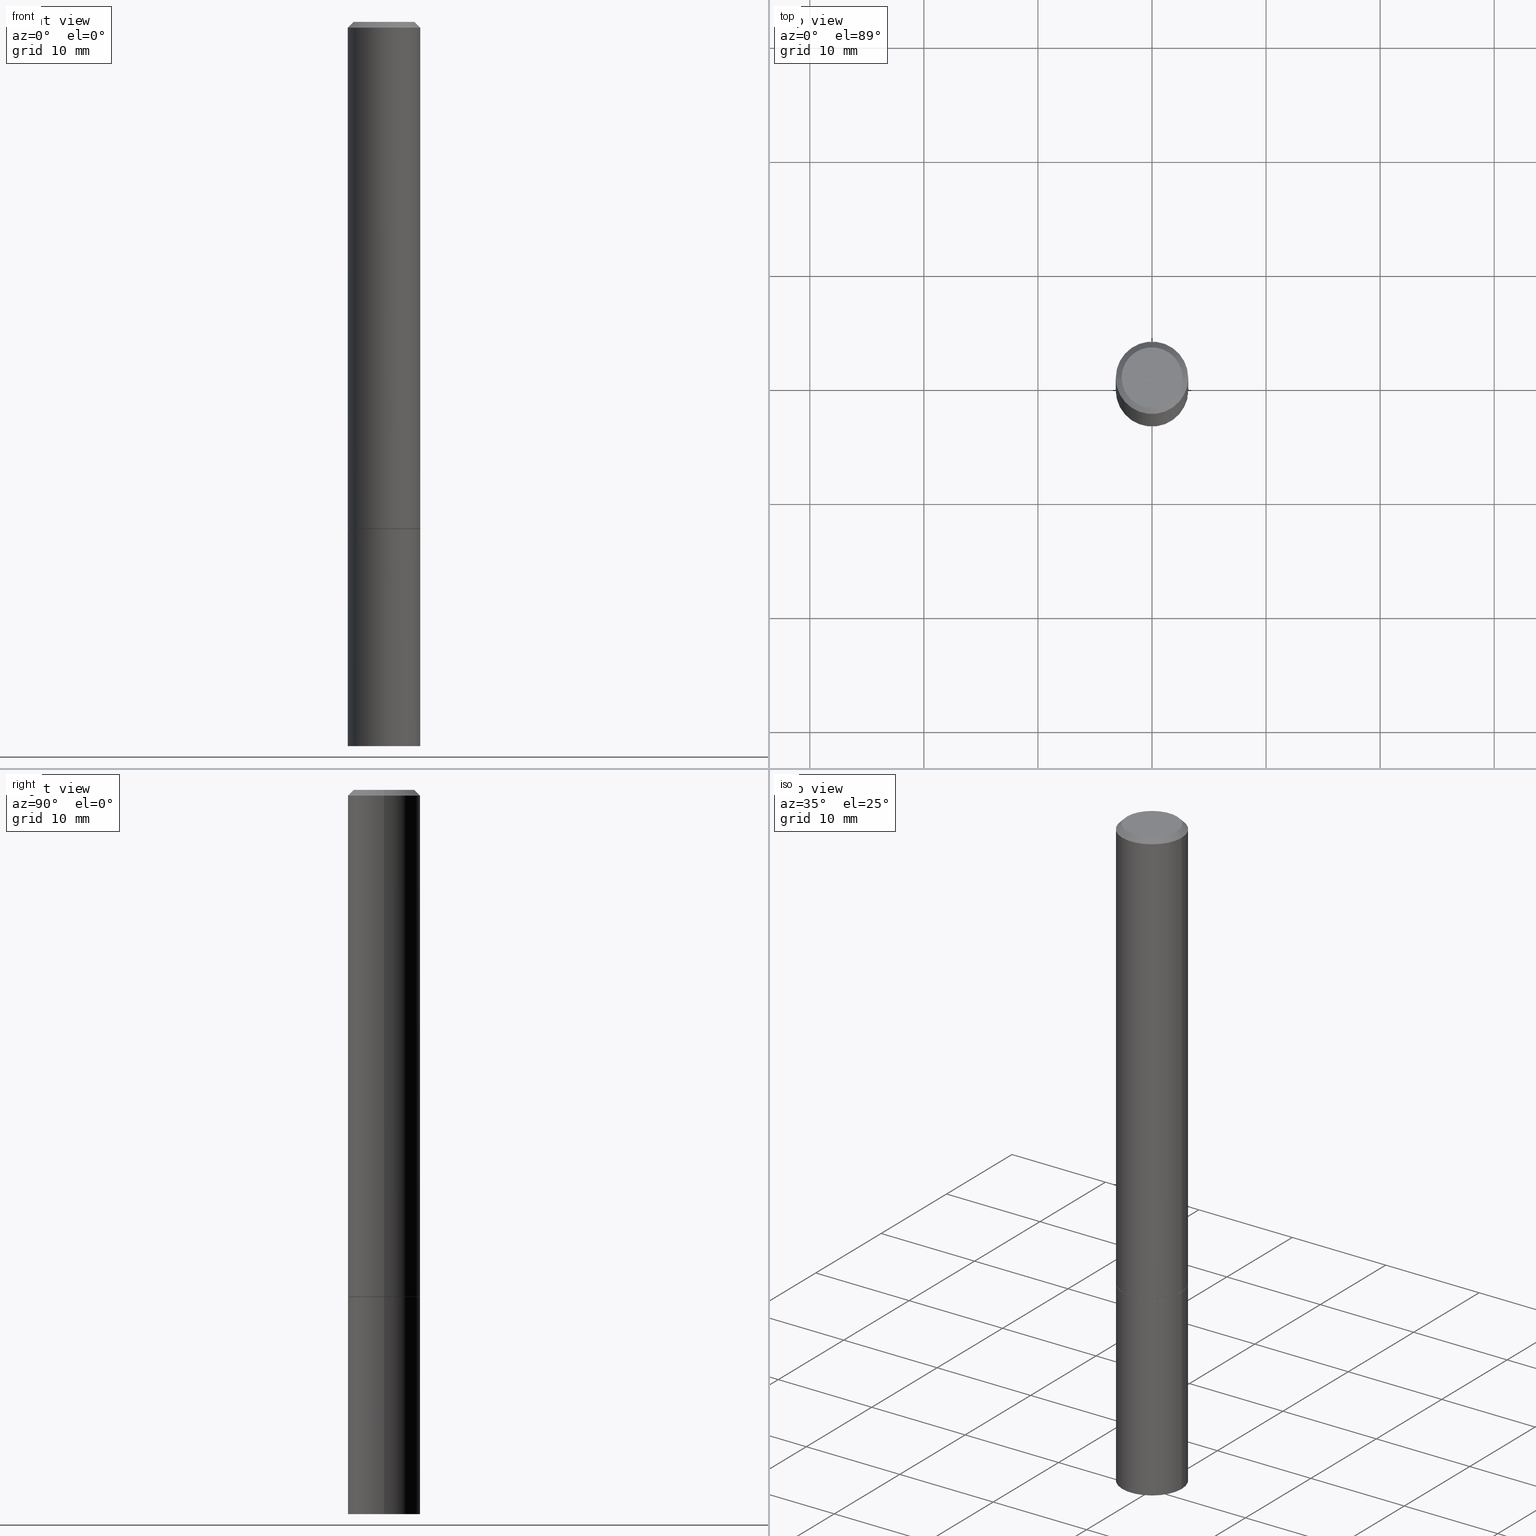
[diagram: canonical four-view strip — front | top / right | iso, engineering-drawing reading convention]
A machine part, canonical four-view strip (front | top / right | iso — engineering-drawing reading convention). The complete STEP part file that produces these views, byte-faithful:
ISO-10303-21;
HEADER;
FILE_DESCRIPTION (( 'STEP AP203' ),
    '1' );
FILE_NAME ('37423.STEP',
    '2024-02-27T21:36:52',
    ( '' ),
    ( '' ),
    'SwSTEP 2.0',
    'SolidWorks 2023',
    '' );
FILE_SCHEMA (( 'CONFIG_CONTROL_DESIGN' ));
ENDSEC;

DATA;
#1 = EDGE_CURVE ( 'NONE', #349, #218, #161, .T. ) ;
#2 = CARTESIAN_POINT ( 'NONE',  ( 4.890937612370281041E-31, -6.982962677686302702E-17, -0.02000000000000003511 ) ) ;
#3 = APPROVAL_STATUS ( 'not_yet_approved' ) ;
#4 = APPROVAL_PERSON_ORGANIZATION ( #276, #176, #242 ) ;
#5 = VERTEX_POINT ( 'NONE', #194 ) ;
#6 = PRODUCT_RELATED_PRODUCT_CATEGORY ( 'detail', '', ( #108 ) ) ;
#7 = LINE ( 'NONE', #36, #279 ) ;
#8 = DIRECTION ( 'NONE',  ( -2.445468806185136597E-29, 3.491481338843145583E-15, 1.000000000000000000 ) ) ;
#9 = VERTEX_POINT ( 'NONE', #284 ) ;
#10 = COORDINATED_UNIVERSAL_TIME_OFFSET ( 5, 0, .BEHIND. ) ;
#11 = AXIS2_PLACEMENT_3D ( 'NONE', #98, #213, #101 ) ;
#12 = LOCAL_TIME ( 16, 36, 52.00000000000000000, #225 ) ;
#13 = ORIENTED_EDGE ( 'NONE', *, *, #251, .F. ) ;
#14 = VERTEX_POINT ( 'NONE', #366 ) ;
#15 = ORIENTED_EDGE ( 'NONE', *, *, #27, .F. ) ;
#16 = ADVANCED_FACE ( 'NONE', ( #139 ), #261, .T. ) ;
#17 = AXIS2_PLACEMENT_3D ( 'NONE', #210, #41, #212 ) ;
#18 = DIRECTION ( 'NONE',  ( -2.438088387897960049E-29, 3.491481338843145188E-15, 1.000000000000000000 ) ) ;
#19 = EDGE_LOOP ( 'NONE', ( #185, #293, #324, #127 ) ) ;
#20 = PERSON_AND_ORGANIZATION ( #309, #271 ) ;
#21 = DIRECTION ( 'NONE',  ( 1.000000000000000000, -6.982962677686262766E-15, 0.000000000000000000 ) ) ;
#22 = CARTESIAN_POINT ( 'NONE',  ( 4.279570410823988484E-29, -6.110092342975504671E-15, -1.750000000000000000 ) ) ;
#23 = CARTESIAN_POINT ( 'NONE',  ( 0.1239999999999999991, -6.975979715008601207E-15, -1.750000000000000000 ) ) ;
#24 = CC_DESIGN_PERSON_AND_ORGANIZATION_ASSIGNMENT ( #78, #193, ( #108 ) ) ;
#25 = AXIS2_PLACEMENT_3D ( 'NONE', #240, #175, #236 ) ;
#26 = FACE_OUTER_BOUND ( 'NONE', #152, .T. ) ;
#27 = EDGE_CURVE ( 'NONE', #218, #349, #357, .T. ) ;
#28 = CC_DESIGN_PERSON_AND_ORGANIZATION_ASSIGNMENT ( #272, #327, ( #205 ) ) ;
#29 =( NAMED_UNIT ( * ) PLANE_ANGLE_UNIT ( ) SI_UNIT ( $, .RADIAN. ) );
#30 = ADVANCED_FACE ( 'NONE', ( #26 ), #258, .T. ) ;
#31 =( CONVERSION_BASED_UNIT ( 'INCH', #42 ) LENGTH_UNIT ( ) NAMED_UNIT ( #100 ) );
#32 = AXIS2_PLACEMENT_3D ( 'NONE', #361, #280, #342 ) ;
#33 = ORIENTED_EDGE ( 'NONE', *, *, #348, .F. ) ;
#34 = DIRECTION ( 'NONE',  ( -1.000000000000000000, 6.982962677686265922E-15, -4.876176775795935793E-29 ) ) ;
#35 = DIRECTION ( 'NONE',  ( -1.000000000000000000, 6.982962677686266711E-15, 0.000000000000000000 ) ) ;
#36 = CARTESIAN_POINT ( 'NONE',  ( -0.1249999999999999029, 8.881784197001245421E-16, -6.148668862818627323E-30 ) ) ;
#37 = EDGE_LOOP ( 'NONE', ( #231, #88, #209, #243 ) ) ;
#38 = DIRECTION ( 'NONE',  ( 1.000000000000000000, -6.982962677686266711E-15, 0.000000000000000000 ) ) ;
#39 = EDGE_CURVE ( 'NONE', #298, #248, #321, .T. ) ;
#40 = EDGE_LOOP ( 'NONE', ( #265, #270, #120, #273 ) ) ;
#41 = DIRECTION ( 'NONE',  ( -2.445468806185136597E-29, 3.491481338843145583E-15, 1.000000000000000000 ) ) ;
#42 = LENGTH_MEASURE_WITH_UNIT ( LENGTH_MEASURE( 0.02539999999999999897 ), #142 );
#43 = ORIENTED_EDGE ( 'NONE', *, *, #39, .T. ) ;
#44 = ADVANCED_FACE ( 'NONE', ( #86 ), #340, .T. ) ;
#45 = ORIENTED_EDGE ( 'NONE', *, *, #335, .F. ) ;
#46 = DIRECTION ( 'NONE',  ( -2.445468806185136597E-29, 3.491481338843145583E-15, 1.000000000000000000 ) ) ;
#47 = LOCAL_TIME ( 16, 36, 52.00000000000000000, #10 ) ;
#48 = EDGE_LOOP ( 'NONE', ( #162, #124, #33, #360 ) ) ;
#49 = FACE_OUTER_BOUND ( 'NONE', #239, .T. ) ;
#50 = APPROVAL_STATUS ( 'not_yet_approved' ) ;
#51 = ADVANCED_FACE ( 'NONE', ( #297 ), #288, .T. ) ;
#52 = CARTESIAN_POINT ( 'NONE',  ( 0.1249999999999997918, -9.273918764983031658E-16, -0.02000000000000003511 ) ) ;
#53 = ADVANCED_BREP_SHAPE_REPRESENTATION ( '37423', ( #305, #70, #331 ), #351 ) ;
#54 = DIRECTION ( 'NONE',  ( 1.000000000000000000, -6.982962677686262766E-15, 0.000000000000000000 ) ) ;
#55 = APPROVAL_PERSON_ORGANIZATION ( #150, #245, #264 ) ;
#56 = LINE ( 'NONE', #134, #123 ) ;
#57 = DIRECTION ( 'NONE',  ( -2.445468806185136597E-29, 3.491481338843145583E-15, 1.000000000000000000 ) ) ;
#58 = DIRECTION ( 'NONE',  ( -2.445468806185136597E-29, 3.491481338843145583E-15, 1.000000000000000000 ) ) ;
#59 = VECTOR ( 'NONE', #125, 39.37007874015748143 ) ;
#60 = LOCAL_TIME ( 16, 36, 52.00000000000000000, #63 ) ;
#61 = DATE_AND_TIME ( #181, #47 ) ;
#62 = ORIENTED_EDGE ( 'NONE', *, *, #39, .F. ) ;
#63 = COORDINATED_UNIVERSAL_TIME_OFFSET ( 5, 0, .BEHIND. ) ;
#64 = CARTESIAN_POINT ( 'NONE',  ( 4.890937612370281041E-31, -6.982962677686302702E-17, -0.02000000000000003511 ) ) ;
#65 = EDGE_LOOP ( 'NONE', ( #302, #43 ) ) ;
#66 = ORIENTED_EDGE ( 'NONE', *, *, #27, .T. ) ;
#67 = CARTESIAN_POINT ( 'NONE',  ( 4.279570410823989044E-29, -6.110092342975505460E-15, -1.750000000000000222 ) ) ;
#68 = CIRCLE ( 'NONE', #241, 0.1250000000000000000 ) ;
#69 = VERTEX_POINT ( 'NONE', #350 ) ;
#70 = MANIFOLD_SOLID_BREP ( 'Body-Move/Copy2[2]', #171 ) ;
#71 = CARTESIAN_POINT ( 'NONE',  ( 4.279570410823988484E-29, -6.110092342975504671E-15, -1.750000000000000000 ) ) ;
#72 = EDGE_CURVE ( 'NONE', #69, #93, #330, .T. ) ;
#73 = ORIENTED_EDGE ( 'NONE', *, *, #353, .F. ) ;
#74 = CALENDAR_DATE ( 2024, 27, 2 ) ;
#75 = MECHANICAL_CONTEXT ( 'NONE', #322, 'mechanical' ) ;
#76 = CIRCLE ( 'NONE', #358, 0.1250000000000000000 ) ;
#77 = EDGE_CURVE ( 'NONE', #93, #69, #199, .T. ) ;
#78 = PERSON_AND_ORGANIZATION ( #309, #271 ) ;
#79 = DIRECTION ( 'NONE',  ( 0.7071067811865467956, -7.319954787623254468E-15, -0.7071067811865482389 ) ) ;
#80 = PRODUCT_DEFINITION ( 'UNKNOWN', '', #205, #189 ) ;
#81 = DIRECTION ( 'NONE',  ( 1.000000000000000000, -6.982962677686266711E-15, 4.876176775795935793E-29 ) ) ;
#82 = EDGE_CURVE ( 'NONE', #346, #248, #267, .T. ) ;
#83 = LOCAL_TIME ( 16, 36, 52.00000000000000000, #356 ) ;
#84 = CARTESIAN_POINT ( 'NONE',  ( 4.279570410823989044E-29, -6.110092342975505460E-15, -1.750000000000000222 ) ) ;
#85 = PLANE ( 'NONE',  #32 ) ;
#86 = FACE_OUTER_BOUND ( 'NONE', #156, .T. ) ;
#87 = AXIS2_PLACEMENT_3D ( 'NONE', #22, #58, #252 ) ;
#88 = ORIENTED_EDGE ( 'NONE', *, *, #126, .T. ) ;
#89 = DIRECTION ( 'NONE',  ( 1.000000000000000000, -6.982962677686262766E-15, 0.000000000000000000 ) ) ;
#90 = AXIS2_PLACEMENT_3D ( 'NONE', #347, #147, #34 ) ;
#91 = CC_DESIGN_DATE_AND_TIME_ASSIGNMENT ( #345, #296, ( #80 ) ) ;
#92 = AXIS2_PLACEMENT_3D ( 'NONE', #167, #283, #278 ) ;
#93 = VERTEX_POINT ( 'NONE', #106 ) ;
#94 = DIRECTION ( 'NONE',  ( -2.445468806185136597E-29, 3.491481338843145583E-15, 1.000000000000000000 ) ) ;
#95 = CARTESIAN_POINT ( 'NONE',  ( 6.113672015462842613E-29, -8.728703347107864943E-15, -2.500000000000000000 ) ) ;
#96 =( NAMED_UNIT ( * ) SI_UNIT ( $, .STERADIAN. ) SOLID_ANGLE_UNIT ( ) );
#97 = AXIS2_PLACEMENT_3D ( 'NONE', #136, #312, #314 ) ;
#98 = CARTESIAN_POINT ( 'NONE',  ( 4.277124942017804562E-29, -6.106600861636661664E-15, -1.749000000000000110 ) ) ;
#99 = CC_DESIGN_PERSON_AND_ORGANIZATION_ASSIGNMENT ( #20, #186, ( #107 ) ) ;
#100 = DIMENSIONAL_EXPONENTS ( 1.000000000000000000, 0.000000000000000000, 0.000000000000000000, 0.000000000000000000, 0.000000000000000000, 0.000000000000000000, 0.000000000000000000 ) ;
#101 = DIRECTION ( 'NONE',  ( 1.000000000000000000, -6.982962677686270655E-15, 0.000000000000000000 ) ) ;
#102 = ORIENTED_EDGE ( 'NONE', *, *, #343, .T. ) ;
#103 = CALENDAR_DATE ( 2024, 27, 2 ) ;
#104 = ADVANCED_FACE ( 'NONE', ( #49 ), #191, .F. ) ;
#105 = AXIS2_PLACEMENT_3D ( 'NONE', #64, #294, #35 ) ;
#106 = CARTESIAN_POINT ( 'NONE',  ( -0.1250000000000000278, -2.200036824506634488E-15, -1.749000000000000110 ) ) ;
#107 = SECURITY_CLASSIFICATION ( '', '', #301 ) ;
#108 = PRODUCT ( '37423', '37423', '', ( #75 ) ) ;
#109 = ORIENTED_EDGE ( 'NONE', *, *, #126, .F. ) ;
#110 = PERSON_AND_ORGANIZATION_ROLE ( 'design_supplier' ) ;
#111 = CARTESIAN_POINT ( 'NONE',  ( -0.1249999999999997918, 8.030407079339188573E-16, -0.02000000000000003511 ) ) ;
#112 = PLANE ( 'NONE',  #204 ) ;
#113 = CYLINDRICAL_SURFACE ( 'NONE', #226, 0.1249999999999999029 ) ;
#114 = DIRECTION ( 'NONE',  ( 1.000000000000000000, -6.982962677686265922E-15, 4.876176775795935793E-29 ) ) ;
#115 = DIRECTION ( 'NONE',  ( 1.000000000000000000, -6.982962677686265922E-15, 4.876176775795935793E-29 ) ) ;
#116 = ADVANCED_FACE ( 'NONE', ( #130 ), #299, .T. ) ;
#117 = FACE_OUTER_BOUND ( 'NONE', #290, .T. ) ;
#118 = ORIENTED_EDGE ( 'NONE', *, *, #266, .F. ) ;
#119 = DIRECTION ( 'NONE',  ( 1.000000000000000000, -6.982962677686270655E-15, 0.000000000000000000 ) ) ;
#120 = ORIENTED_EDGE ( 'NONE', *, *, #348, .T. ) ;
#121 = ORIENTED_EDGE ( 'NONE', *, *, #343, .F. ) ;
#122 = AXIS2_PLACEMENT_3D ( 'NONE', #84, #364, #54 ) ;
#123 = VECTOR ( 'NONE', #363, 39.37007874015748143 ) ;
#124 = ORIENTED_EDGE ( 'NONE', *, *, #274, .T. ) ;
#125 = DIRECTION ( 'NONE',  ( -2.445468806185136877E-29, 3.491481338843145188E-15, 1.000000000000000000 ) ) ;
#126 = EDGE_CURVE ( 'NONE', #218, #93, #362, .T. ) ;
#127 = ORIENTED_EDGE ( 'NONE', *, *, #222, .F. ) ;
#128 = CC_DESIGN_SECURITY_CLASSIFICATION ( #107, ( #205 ) ) ;
#129 = ORIENTED_EDGE ( 'NONE', *, *, #82, .T. ) ;
#130 = FACE_OUTER_BOUND ( 'NONE', #319, .T. ) ;
#131 = CARTESIAN_POINT ( 'NONE',  ( 0.000000000000000000, 0.000000000000000000, 0.000000000000000000 ) ) ;
#132 = COORDINATED_UNIVERSAL_TIME_OFFSET ( 5, 0, .BEHIND. ) ;
#133 = DIRECTION ( 'NONE',  ( 1.000000000000000000, -6.982962677686265922E-15, 4.876176775795935793E-29 ) ) ;
#134 = CARTESIAN_POINT ( 'NONE',  ( 0.1239999999999999991, -6.975979715008601207E-15, -1.750000000000000000 ) ) ;
#135 = VECTOR ( 'NONE', #211, 39.37007874015748143 ) ;
#136 = CARTESIAN_POINT ( 'NONE',  ( 0.000000000000000000, 0.000000000000000000, 0.000000000000000000 ) ) ;
#137 = EDGE_CURVE ( 'NONE', #9, #206, #359, .T. ) ;
#138 = DIRECTION ( 'NONE',  ( -1.000000000000000000, 6.982962677686265922E-15, -4.876176775795935793E-29 ) ) ;
#139 = FACE_OUTER_BOUND ( 'NONE', #37, .T. ) ;
#140 = AXIS2_PLACEMENT_3D ( 'NONE', #202, #286, #115 ) ;
#141 = ADVANCED_FACE ( 'NONE', ( #163 ), #112, .T. ) ;
#142 =( LENGTH_UNIT ( ) NAMED_UNIT ( * ) SI_UNIT ( $, .METRE. ) );
#143 = AXIS2_PLACEMENT_3D ( 'NONE', #281, #57, #339 ) ;
#144 = APPROVAL_PERSON_ORGANIZATION ( #332, #338, #166 ) ;
#145 = PERSON_AND_ORGANIZATION ( #309, #271 ) ;
#146 = ORIENTED_EDGE ( 'NONE', *, *, #182, .F. ) ;
#147 = DIRECTION ( 'NONE',  ( 2.438088387897960049E-29, -3.491481338843145188E-15, -1.000000000000000000 ) ) ;
#148 = CC_DESIGN_DATE_AND_TIME_ASSIGNMENT ( #157, #249, ( #107 ) ) ;
#149 = CARTESIAN_POINT ( 'NONE',  ( 0.000000000000000000, 0.000000000000000000, 0.000000000000000000 ) ) ;
#150 = PERSON_AND_ORGANIZATION ( #309, #271 ) ;
#151 = DIRECTION ( 'NONE',  ( 1.000000000000000000, -6.982962677686266711E-15, 4.876176775795935793E-29 ) ) ;
#152 = EDGE_LOOP ( 'NONE', ( #118, #187, #129, #62 ) ) ;
#153 = AXIS2_PLACEMENT_3D ( 'NONE', #246, #18, #133 ) ;
#154 = PERSON_AND_ORGANIZATION_ROLE ( 'creator' ) ;
#155 = CARTESIAN_POINT ( 'NONE',  ( 0.1250000000000000000, -8.728703347107833388E-16, 6.095220969744919741E-30 ) ) ;
#156 = EDGE_LOOP ( 'NONE', ( #45, #121, #237, #354 ) ) ;
#157 = DATE_AND_TIME ( #74, #313 ) ;
#158 = ORIENTED_EDGE ( 'NONE', *, *, #82, .F. ) ;
#159 = DIRECTION ( 'NONE',  ( 2.438088387897960049E-29, -3.491481338843145188E-15, -1.000000000000000000 ) ) ;
#160 = CARTESIAN_POINT ( 'NONE',  ( -0.1239999999999999991, -5.229019350632980447E-15, -1.750000000000000000 ) ) ;
#161 = CIRCLE ( 'NONE', #143, 0.1239999999999999991 ) ;
#162 = ORIENTED_EDGE ( 'NONE', *, *, #72, .T. ) ;
#163 = FACE_OUTER_BOUND ( 'NONE', #179, .T. ) ;
#164 = CYLINDRICAL_SURFACE ( 'NONE', #97, 0.1250000000000000000 ) ;
#165 = ORIENTED_EDGE ( 'NONE', *, *, #266, .T. ) ;
#166 = APPROVAL_ROLE ( '' ) ;
#167 = CARTESIAN_POINT ( 'NONE',  ( 4.890937612370281041E-31, -6.982962677686302702E-17, -0.02000000000000003511 ) ) ;
#168 = VECTOR ( 'NONE', #333, 39.37007874015748143 ) ;
#169 = CARTESIAN_POINT ( 'NONE',  ( -0.1250000000000000000, -6.531219425341559180E-15, -1.750000000000000222 ) ) ;
#170 = CARTESIAN_POINT ( 'NONE',  ( 0.1250000000000000000, -9.601573681818648281E-15, -2.500000000000000000 ) ) ;
#171 = CLOSED_SHELL ( 'NONE', ( #16, #260, #172, #44, #51, #116, #104, #234 ) ) ;
#172 = ADVANCED_FACE ( 'NONE', ( #256 ), #304, .T. ) ;
#173 = DIRECTION ( 'NONE',  ( -2.445468806185136597E-29, 3.491481338843145583E-15, 1.000000000000000000 ) ) ;
#174 = CARTESIAN_POINT ( 'NONE',  ( -0.1250000000000000000, 8.881784197001252323E-16, -6.148668862818632227E-30 ) ) ;
#175 = DIRECTION ( 'NONE',  ( 2.445468806185136597E-29, -3.491481338843145583E-15, -1.000000000000000000 ) ) ;
#176 = APPROVAL ( #198, 'UNSPECIFIED' ) ;
#177 = CLOSED_SHELL ( 'NONE', ( #282, #141, #317, #30 ) ) ;
#178 = CIRCLE ( 'NONE', #244, 0.1049999999999998018 ) ;
#179 = EDGE_LOOP ( 'NONE', ( #146, #73 ) ) ;
#180 = PLANE ( 'NONE',  #90 ) ;
#181 = CALENDAR_DATE ( 2024, 27, 2 ) ;
#182 = EDGE_CURVE ( 'NONE', #346, #14, #76, .T. ) ;
#183 = VECTOR ( 'NONE', #79, 39.37007874015748143 ) ;
#184 = PERSON_AND_ORGANIZATION ( #309, #271 ) ;
#185 = ORIENTED_EDGE ( 'NONE', *, *, #274, .F. ) ;
#186 = PERSON_AND_ORGANIZATION_ROLE ( 'classification_officer' ) ;
#187 = ORIENTED_EDGE ( 'NONE', *, *, #353, .T. ) ;
#188 = DIRECTION ( 'NONE',  ( -2.445468806185136877E-29, 3.491481338843145188E-15, 1.000000000000000000 ) ) ;
#189 = DESIGN_CONTEXT ( 'detailed design', #254, 'design' ) ;
#190 = CC_DESIGN_PERSON_AND_ORGANIZATION_ASSIGNMENT ( #145, #154, ( #80 ) ) ;
#191 = PLANE ( 'NONE',  #153 ) ;
#192 = AXIS2_PLACEMENT_3D ( 'NONE', #67, #269, #89 ) ;
#193 = PERSON_AND_ORGANIZATION_ROLE ( 'design_owner' ) ;
#194 = CARTESIAN_POINT ( 'NONE',  ( 0.1049999999999998018, -8.238720831321562839E-16, 5.444276250344140956E-30 ) ) ;
#195 = DIRECTION ( 'NONE',  ( -0.7071067811865467956, 2.468850131082249172E-15, -0.7071067811865482389 ) ) ;
#196 = CARTESIAN_POINT ( 'NONE',  ( 0.000000000000000000, 0.000000000000000000, 0.000000000000000000 ) ) ;
#197 = DIRECTION ( 'NONE',  ( 1.000000000000000000, -6.982962677686266711E-15, 4.876176775795935793E-29 ) ) ;
#198 = APPROVAL_STATUS ( 'not_yet_approved' ) ;
#199 = CIRCLE ( 'NONE', #17, 0.1250000000000000000 ) ;
#200 = VECTOR ( 'NONE', #250, 39.37007874015748143 ) ;
#201 = APPROVAL_DATE_TIME ( #341, #176 ) ;
#202 = CARTESIAN_POINT ( 'NONE',  ( 0.000000000000000000, 0.000000000000000000, 0.000000000000000000 ) ) ;
#203 = AXIS2_PLACEMENT_3D ( 'NONE', #71, #46, #21 ) ;
#204 = AXIS2_PLACEMENT_3D ( 'NONE', #275, #159, #138 ) ;
#205 = PRODUCT_DEFINITION_FORMATION_WITH_SPECIFIED_SOURCE ( 'ANY', '', #108, .NOT_KNOWN. ) ;
#206 = VERTEX_POINT ( 'NONE', #323 ) ;
#207 = ORIENTED_EDGE ( 'NONE', *, *, #77, .F. ) ;
#208 = CARTESIAN_POINT ( 'NONE',  ( -0.1239999999999999991, -5.223720896284758045E-15, -1.750000000000000000 ) ) ;
#209 = ORIENTED_EDGE ( 'NONE', *, *, #72, .F. ) ;
#210 = CARTESIAN_POINT ( 'NONE',  ( 4.277124942017804562E-29, -6.106600861636661664E-15, -1.749000000000000110 ) ) ;
#211 = DIRECTION ( 'NONE',  ( -2.445468806185136877E-29, 3.491481338843145188E-15, 1.000000000000000000 ) ) ;
#212 = DIRECTION ( 'NONE',  ( 1.000000000000000000, -6.982962677686270655E-15, 0.000000000000000000 ) ) ;
#213 = DIRECTION ( 'NONE',  ( -2.445468806185136597E-29, 3.491481338843145583E-15, 1.000000000000000000 ) ) ;
#214 = ORIENTED_EDGE ( 'NONE', *, *, #289, .T. ) ;
#215 = VECTOR ( 'NONE', #195, 39.37007874015748143 ) ;
#216 = CIRCLE ( 'NONE', #140, 0.1049999999999998018 ) ;
#217 = APPROVAL_DATE_TIME ( #277, #338 ) ;
#218 = VERTEX_POINT ( 'NONE', #208 ) ;
#219 = CC_DESIGN_APPROVAL ( #176, ( #80 ) ) ;
#220 = CARTESIAN_POINT ( 'NONE',  ( 0.1249999999999997918, -9.273918764983031658E-16, -0.02000000000000003511 ) ) ;
#221 = CARTESIAN_POINT ( 'NONE',  ( 0.000000000000000000, 0.000000000000000000, 0.000000000000000000 ) ) ;
#222 = EDGE_CURVE ( 'NONE', #206, #344, #287, .T. ) ;
#223 = CARTESIAN_POINT ( 'NONE',  ( 6.113672015462842613E-29, -8.728703347107864943E-15, -2.500000000000000000 ) ) ;
#224 = CARTESIAN_POINT ( 'NONE',  ( 0.000000000000000000, 0.000000000000000000, 0.000000000000000000 ) ) ;
#225 = COORDINATED_UNIVERSAL_TIME_OFFSET ( 5, 0, .BEHIND. ) ;
#226 = AXIS2_PLACEMENT_3D ( 'NONE', #224, #337, #81 ) ;
#227 = FACE_OUTER_BOUND ( 'NONE', #65, .T. ) ;
#228 = DIRECTION ( 'NONE',  ( 1.000000000000000000, -6.982962677686262766E-15, 0.000000000000000000 ) ) ;
#229 = CARTESIAN_POINT ( 'NONE',  ( 0.1249999999999999029, -8.728703347107826486E-16, 6.095220969744914837E-30 ) ) ;
#230 = DIRECTION ( 'NONE',  ( -2.445468806185136597E-29, 3.491481338843145583E-15, 1.000000000000000000 ) ) ;
#231 = ORIENTED_EDGE ( 'NONE', *, *, #1, .T. ) ;
#232 = CIRCLE ( 'NONE', #92, 0.1249999999999997918 ) ;
#233 = ORIENTED_EDGE ( 'NONE', *, *, #292, .T. ) ;
#234 = ADVANCED_FACE ( 'NONE', ( #117 ), #180, .F. ) ;
#235 = ORIENTED_EDGE ( 'NONE', *, *, #1, .F. ) ;
#236 = DIRECTION ( 'NONE',  ( -1.000000000000000000, 6.982962677686266711E-15, 0.000000000000000000 ) ) ;
#237 = ORIENTED_EDGE ( 'NONE', *, *, #137, .T. ) ;
#238 = AXIS2_PLACEMENT_3D ( 'NONE', #221, #336, #197 ) ;
#239 = EDGE_LOOP ( 'NONE', ( #235, #15 ) ) ;
#240 = CARTESIAN_POINT ( 'NONE',  ( 4.890937612370281041E-31, -6.982962677686302702E-17, -0.02000000000000003511 ) ) ;
#241 = AXIS2_PLACEMENT_3D ( 'NONE', #223, #173, #119 ) ;
#242 = APPROVAL_ROLE ( '' ) ;
#243 = ORIENTED_EDGE ( 'NONE', *, *, #289, .F. ) ;
#244 = AXIS2_PLACEMENT_3D ( 'NONE', #196, #255, #114 ) ;
#245 = APPROVAL ( #3, 'UNSPECIFIED' ) ;
#246 = CARTESIAN_POINT ( 'NONE',  ( 4.279570410823989044E-29, -6.110092342975505460E-15, -1.750000000000000222 ) ) ;
#247 = DIRECTION ( 'NONE',  ( 0.000000000000000000, 0.000000000000000000, 1.000000000000000000 ) ) ;
#248 = VERTEX_POINT ( 'NONE', #295 ) ;
#249 = DATE_TIME_ROLE ( 'classification_date' ) ;
#250 = DIRECTION ( 'NONE',  ( -2.445468806185136877E-29, 3.491481338843145188E-15, 1.000000000000000000 ) ) ;
#251 = EDGE_CURVE ( 'NONE', #248, #298, #300, .T. ) ;
#252 = DIRECTION ( 'NONE',  ( 1.000000000000000000, -6.982962677686262766E-15, 0.000000000000000000 ) ) ;
#253 = AXIS2_PLACEMENT_3D ( 'NONE', #2, #320, #38 ) ;
#254 = APPLICATION_CONTEXT ( 'configuration controlled 3d designs of mechanical parts and assemblies' ) ;
#255 = DIRECTION ( 'NONE',  ( -2.445468806185136597E-29, 3.491481338843145583E-15, 1.000000000000000000 ) ) ;
#256 = FACE_OUTER_BOUND ( 'NONE', #40, .T. ) ;
#257 = FACE_OUTER_BOUND ( 'NONE', #268, .T. ) ;
#258 = CYLINDRICAL_SURFACE ( 'NONE', #238, 0.1250000000000000000 ) ;
#259 = AXIS2_PLACEMENT_3D ( 'NONE', #334, #230, #228 ) ;
#260 = ADVANCED_FACE ( 'NONE', ( #316 ), #113, .T. ) ;
#261 = CONICAL_SURFACE ( 'NONE', #87, 0.1239999999999999991, 0.7853981633975507526 ) ;
#262 = CC_DESIGN_APPROVAL ( #245, ( #205 ) ) ;
#263 = LINE ( 'NONE', #174, #135 ) ;
#264 = APPROVAL_ROLE ( '' ) ;
#265 = ORIENTED_EDGE ( 'NONE', *, *, #292, .F. ) ;
#266 = EDGE_CURVE ( 'NONE', #14, #298, #263, .T. ) ;
#267 = LINE ( 'NONE', #155, #59 ) ;
#268 = EDGE_LOOP ( 'NONE', ( #303, #165, #13, #158 ) ) ;
#269 = DIRECTION ( 'NONE',  ( -2.445468806185136597E-29, 3.491481338843145583E-15, 1.000000000000000000 ) ) ;
#270 = ORIENTED_EDGE ( 'NONE', *, *, #335, .T. ) ;
#271 = ORGANIZATION ( 'UNSPECIFIED', 'UNSPECIFIED', '' ) ;
#272 = PERSON_AND_ORGANIZATION ( #309, #271 ) ;
#273 = ORIENTED_EDGE ( 'NONE', *, *, #137, .F. ) ;
#274 = EDGE_CURVE ( 'NONE', #93, #206, #7, .T. ) ;
#275 = CARTESIAN_POINT ( 'NONE',  ( 8.728703347108443769E-16, 0.1249999999999912709, -2.500000000000000444 ) ) ;
#276 = PERSON_AND_ORGANIZATION ( #309, #271 ) ;
#277 = DATE_AND_TIME ( #103, #83 ) ;
#278 = DIRECTION ( 'NONE',  ( 1.000000000000000000, -6.982962677686266711E-15, 0.000000000000000000 ) ) ;
#279 = VECTOR ( 'NONE', #188, 39.37007874015748143 ) ;
#280 = DIRECTION ( 'NONE',  ( 2.438088387897960049E-29, -3.491481338843145188E-15, -1.000000000000000000 ) ) ;
#281 = CARTESIAN_POINT ( 'NONE',  ( 4.279570410823988484E-29, -6.110092342975504671E-15, -1.750000000000000000 ) ) ;
#282 = ADVANCED_FACE ( 'NONE', ( #257 ), #164, .T. ) ;
#283 = DIRECTION ( 'NONE',  ( -2.445468806185136597E-29, 3.491481338843145583E-15, 1.000000000000000000 ) ) ;
#284 = CARTESIAN_POINT ( 'NONE',  ( -0.1049999999999998018, 7.681258945454876027E-16, -5.249639473182157468E-30 ) ) ;
#285 = CALENDAR_DATE ( 2024, 27, 2 ) ;
#286 = DIRECTION ( 'NONE',  ( -2.445468806185136597E-29, 3.491481338843145583E-15, 1.000000000000000000 ) ) ;
#287 = CIRCLE ( 'NONE', #253, 0.1249999999999997918 ) ;
#288 = CYLINDRICAL_SURFACE ( 'NONE', #318, 0.1249999999999999029 ) ;
#289 = EDGE_CURVE ( 'NONE', #349, #69, #56, .T. ) ;
#290 = EDGE_LOOP ( 'NONE', ( #102, #233 ) ) ;
#291 = CC_DESIGN_APPROVAL ( #338, ( #107 ) ) ;
#292 = EDGE_CURVE ( 'NONE', #5, #9, #216, .T. ) ;
#293 = ORIENTED_EDGE ( 'NONE', *, *, #77, .T. ) ;
#294 = DIRECTION ( 'NONE',  ( 2.445468806185136597E-29, -3.491481338843145583E-15, -1.000000000000000000 ) ) ;
#295 = CARTESIAN_POINT ( 'NONE',  ( 0.1250000000000000000, -6.982962677686288010E-15, -1.750000000000000222 ) ) ;
#296 = DATE_TIME_ROLE ( 'creation_date' ) ;
#297 = FACE_OUTER_BOUND ( 'NONE', #19, .T. ) ;
#298 = VERTEX_POINT ( 'NONE', #169 ) ;
#299 = CONICAL_SURFACE ( 'NONE', #203, 0.1239999999999999991, 0.7853981633975507526 ) ;
#300 = CIRCLE ( 'NONE', #192, 0.1250000000000000000 ) ;
#301 = SECURITY_CLASSIFICATION_LEVEL ( 'unclassified' ) ;
#302 = ORIENTED_EDGE ( 'NONE', *, *, #251, .T. ) ;
#303 = ORIENTED_EDGE ( 'NONE', *, *, #182, .T. ) ;
#304 = CONICAL_SURFACE ( 'NONE', #25, 0.1249999999999997918, 0.7853981633974472798 ) ;
#305 = MANIFOLD_SOLID_BREP ( 'Body-Move/Copy2[1]', #177 ) ;
#306 = APPLICATION_PROTOCOL_DEFINITION ( 'international standard', 'config_control_design', 1994, #254 ) ;
#307 = UNCERTAINTY_MEASURE_WITH_UNIT (LENGTH_MEASURE( 1.000000000000000082E-05 ), #31, 'distance_accuracy_value', 'NONE');
#308 = APPROVAL_DATE_TIME ( #61, #245 ) ;
#309 = PERSON ( 'UNSPECIFIED', 'UNSPECIFIED', 'UNSPECIFIED', ('UNSPECIFIED'), ('UNSPECIFIED'), ('UNSPECIFIED') ) ;
#310 = DIRECTION ( 'NONE',  ( 1.000000000000000000, 0.000000000000000000, 0.000000000000000000 ) ) ;
#311 = LINE ( 'NONE', #229, #200 ) ;
#312 = DIRECTION ( 'NONE',  ( -2.445468806185136597E-29, 3.491481338843145583E-15, 1.000000000000000000 ) ) ;
#313 = LOCAL_TIME ( 16, 36, 52.00000000000000000, #132 ) ;
#314 = DIRECTION ( 'NONE',  ( 1.000000000000000000, -6.982962677686266711E-15, 4.876176775795935793E-29 ) ) ;
#315 = EDGE_CURVE ( 'NONE', #69, #344, #311, .T. ) ;
#316 = FACE_OUTER_BOUND ( 'NONE', #48, .T. ) ;
#317 = ADVANCED_FACE ( 'NONE', ( #227 ), #85, .F. ) ;
#318 = AXIS2_PLACEMENT_3D ( 'NONE', #149, #8, #151 ) ;
#319 = EDGE_LOOP ( 'NONE', ( #109, #66, #214, #207 ) ) ;
#320 = DIRECTION ( 'NONE',  ( -2.445468806185136597E-29, 3.491481338843145583E-15, 1.000000000000000000 ) ) ;
#321 = CIRCLE ( 'NONE', #122, 0.1250000000000000000 ) ;
#322 = APPLICATION_CONTEXT ( 'configuration controlled 3d designs of mechanical parts and assemblies' ) ;
#323 = CARTESIAN_POINT ( 'NONE',  ( -0.1249999999999997918, 8.030407079339188573E-16, -0.02000000000000003511 ) ) ;
#324 = ORIENTED_EDGE ( 'NONE', *, *, #315, .T. ) ;
#325 = CALENDAR_DATE ( 2024, 27, 2 ) ;
#326 = PRODUCT_DEFINITION_SHAPE ( 'NONE', 'NONE',  #80 ) ;
#327 = PERSON_AND_ORGANIZATION_ROLE ( 'creator' ) ;
#328 = SHAPE_DEFINITION_REPRESENTATION ( #326, #53 ) ;
#329 = APPLICATION_PROTOCOL_DEFINITION ( 'international standard', 'config_control_design', 1994, #322 ) ;
#330 = CIRCLE ( 'NONE', #11, 0.1250000000000000000 ) ;
#331 = AXIS2_PLACEMENT_3D ( 'NONE', #131, #247, #310 ) ;
#332 = PERSON_AND_ORGANIZATION ( #309, #271 ) ;
#333 = DIRECTION ( 'NONE',  ( -0.7071067811866199593, 7.493145998870616062E-15, 0.7071067811864750752 ) ) ;
#334 = CARTESIAN_POINT ( 'NONE',  ( 4.279570410823988484E-29, -6.110092342975504671E-15, -1.750000000000000000 ) ) ;
#335 = EDGE_CURVE ( 'NONE', #5, #344, #365, .T. ) ;
#336 = DIRECTION ( 'NONE',  ( -2.445468806185136597E-29, 3.491481338843145583E-15, 1.000000000000000000 ) ) ;
#337 = DIRECTION ( 'NONE',  ( -2.445468806185136597E-29, 3.491481338843145583E-15, 1.000000000000000000 ) ) ;
#338 = APPROVAL ( #50, 'UNSPECIFIED' ) ;
#339 = DIRECTION ( 'NONE',  ( 1.000000000000000000, -6.982962677686262766E-15, 0.000000000000000000 ) ) ;
#340 = CONICAL_SURFACE ( 'NONE', #105, 0.1249999999999997918, 0.7853981633974472798 ) ;
#341 = DATE_AND_TIME ( #285, #12 ) ;
#342 = DIRECTION ( 'NONE',  ( -1.000000000000000000, 6.982962677686265922E-15, -4.876176775795935793E-29 ) ) ;
#343 = EDGE_CURVE ( 'NONE', #9, #5, #178, .T. ) ;
#344 = VERTEX_POINT ( 'NONE', #52 ) ;
#345 = DATE_AND_TIME ( #325, #60 ) ;
#346 = VERTEX_POINT ( 'NONE', #170 ) ;
#347 = CARTESIAN_POINT ( 'NONE',  ( 7.332110811570565452E-16, 0.1049999999999998018, -3.666055405785296038E-16 ) ) ;
#348 = EDGE_CURVE ( 'NONE', #344, #206, #232, .T. ) ;
#349 = VERTEX_POINT ( 'NONE', #23 ) ;
#350 = CARTESIAN_POINT ( 'NONE',  ( 0.1250000000000000000, -6.979471196347445792E-15, -1.749000000000000110 ) ) ;
#351 =( GEOMETRIC_REPRESENTATION_CONTEXT ( 3 ) GLOBAL_UNCERTAINTY_ASSIGNED_CONTEXT ( ( #307 ) ) GLOBAL_UNIT_ASSIGNED_CONTEXT ( ( #31, #29, #96 ) ) REPRESENTATION_CONTEXT ( 'NONE', 'WORKASPACE' ) );
#352 = DIRECTION ( 'NONE',  ( 1.000000000000000000, -6.982962677686270655E-15, 0.000000000000000000 ) ) ;
#353 = EDGE_CURVE ( 'NONE', #14, #346, #68, .T. ) ;
#354 = ORIENTED_EDGE ( 'NONE', *, *, #222, .T. ) ;
#355 = CC_DESIGN_PERSON_AND_ORGANIZATION_ASSIGNMENT ( #184, #110, ( #205 ) ) ;
#356 = COORDINATED_UNIVERSAL_TIME_OFFSET ( 5, 0, .BEHIND. ) ;
#357 = CIRCLE ( 'NONE', #259, 0.1239999999999999991 ) ;
#358 = AXIS2_PLACEMENT_3D ( 'NONE', #95, #94, #352 ) ;
#359 = LINE ( 'NONE', #111, #215 ) ;
#360 = ORIENTED_EDGE ( 'NONE', *, *, #315, .F. ) ;
#361 = CARTESIAN_POINT ( 'NONE',  ( 8.728703347108260359E-16, 0.1249999999999938799, -1.750000000000000666 ) ) ;
#362 = LINE ( 'NONE', #160, #168 ) ;
#363 = DIRECTION ( 'NONE',  ( 0.7071067811866199593, -2.468850131083015945E-15, 0.7071067811864750752 ) ) ;
#364 = DIRECTION ( 'NONE',  ( -2.445468806185136597E-29, 3.491481338843145583E-15, 1.000000000000000000 ) ) ;
#365 = LINE ( 'NONE', #220, #183 ) ;
#366 = CARTESIAN_POINT ( 'NONE',  ( -0.1250000000000000000, -6.531219425341559180E-15, -2.500000000000000000 ) ) ;
ENDSEC;
END-ISO-10303-21;
